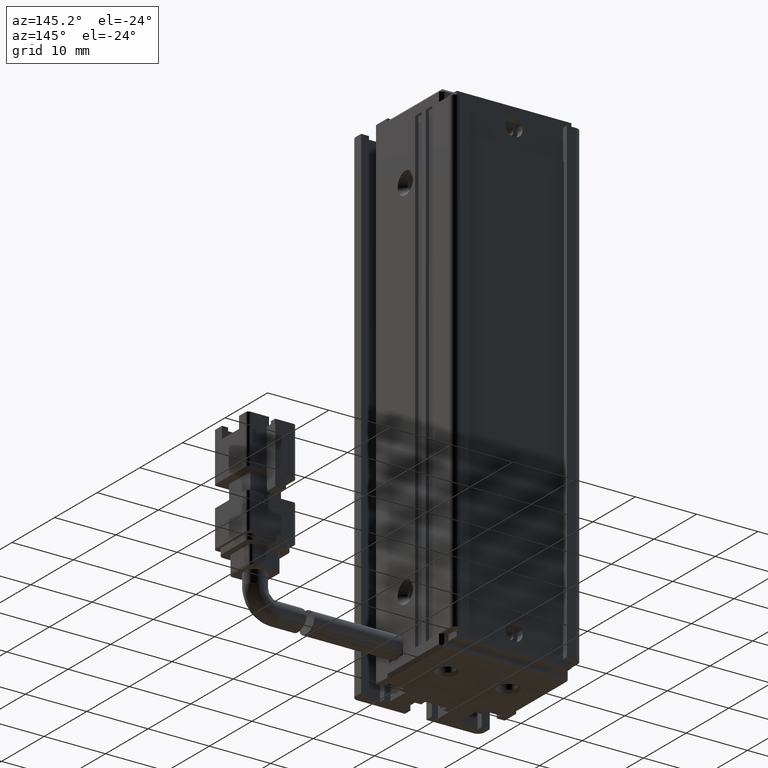
[diagram: clean part render]
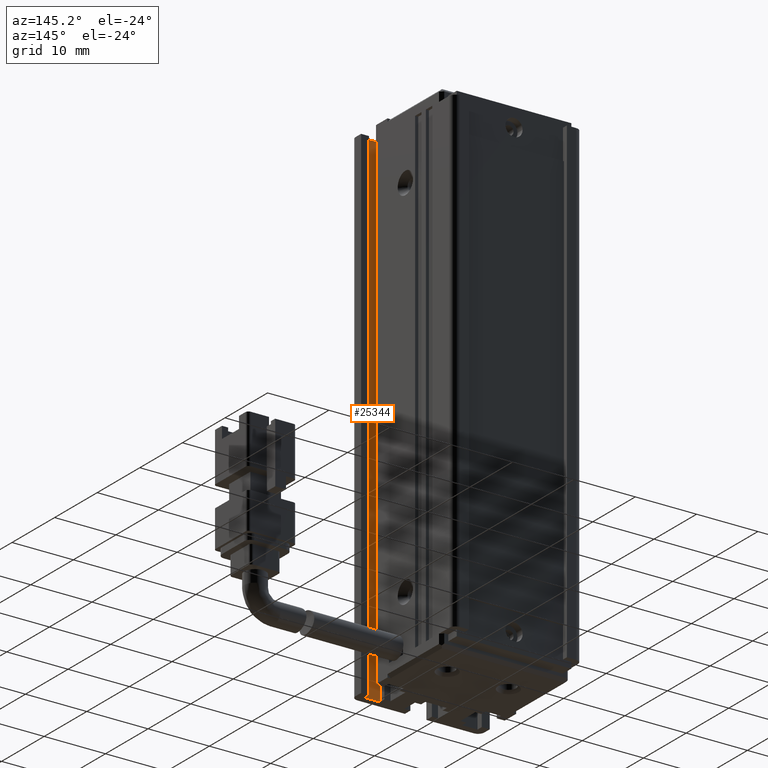
[diagram: same view with one face highlighted and labeled with its STEP entity id]
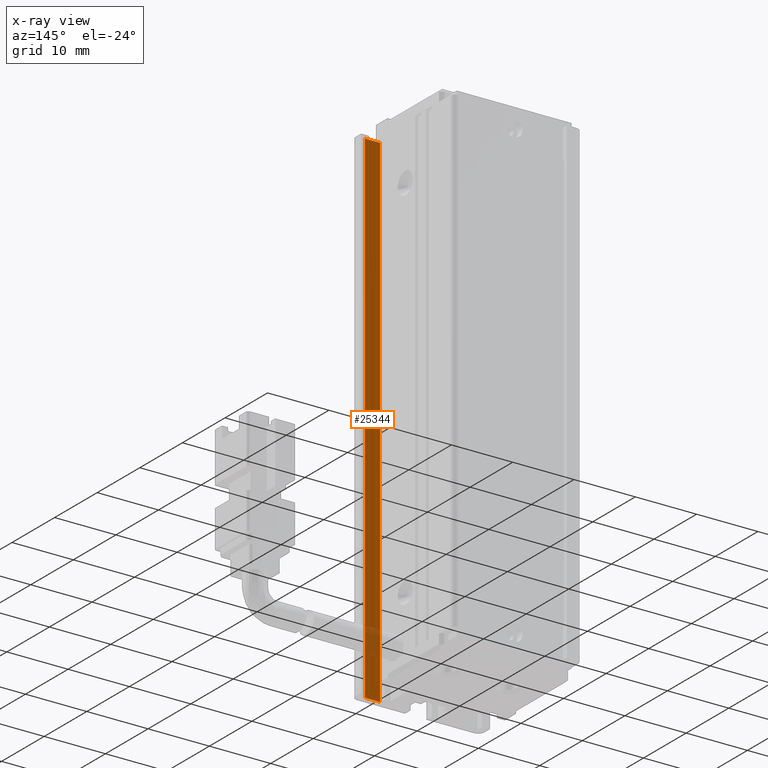
[diagram: x-ray of the same camera — body ghosted, the highlighted face saturated]
A machine part, auxiliary view. The second image highlights one B-rep face of the part: STEP entity #25344.
The next image is the same camera in x-ray: the body ghosted, the highlighted face saturated — about 5% of this face is hidden behind the body in this view.
In plain terms, the highlighted planar face has unit normal (0, 1, -0).
Its self-contained STEP definition (entity closure, byte-faithful):
#295 = EDGE_CURVE ( 'NONE', #3623, #18697, #4215, .T. ) ;
#3623 = VERTEX_POINT ( 'NONE', #26610 ) ;
#4215 = LINE ( 'NONE', #5318, #21884 ) ;
#4801 = CARTESIAN_POINT ( 'NONE',  ( 50.12537974683542100, 12.29073232304837200, -74.00000000000000000 ) ) ;
#5318 = CARTESIAN_POINT ( 'NONE',  ( 40.92537974683542500, 12.29073232304837200, -74.00000000000001400 ) ) ;
#5744 = VERTEX_POINT ( 'NONE', #23139 ) ;
#5850 = EDGE_CURVE ( 'NONE', #10724, #18697, #23126, .T. ) ;
#6682 = DIRECTION ( 'NONE',  ( -1.000000000000000000, -0.0000000000000000000, 0.0000000000000000000 ) ) ;
#6742 = LINE ( 'NONE', #25421, #25136 ) ;
#8658 = DIRECTION ( 'NONE',  ( -1.000000000000000000, 7.380418287155808400E-032, 0.0000000000000000000 ) ) ;
#9201 = EDGE_LOOP ( 'NONE', ( #22531, #10806, #21933, #19512 ) ) ;
#10348 = CARTESIAN_POINT ( 'NONE',  ( 47.62537974683541400, 12.29073232304837200, -74.00000000000001400 ) ) ;
#10724 = VERTEX_POINT ( 'NONE', #18523 ) ;
#10806 = ORIENTED_EDGE ( 'NONE', *, *, #13366, .T. ) ;
#11216 = PLANE ( 'NONE',  #22490 ) ;
#13366 = EDGE_CURVE ( 'NONE', #3623, #5744, #24870, .T. ) ;
#15811 = DIRECTION ( 'NONE',  ( 7.380418287155808400E-032, 1.000000000000000000, -0.0000000000000000000 ) ) ;
#18523 = CARTESIAN_POINT ( 'NONE',  ( 47.62537974683541400, 12.29073232304837200, -156.0000000000000000 ) ) ;
#18697 = VERTEX_POINT ( 'NONE', #10348 ) ;
#18749 = VECTOR ( 'NONE', #23245, 1000.000000000000000 ) ;
#18780 = CARTESIAN_POINT ( 'NONE',  ( 47.62537974683541400, 12.29073232304837200, -74.00000000000000000 ) ) ;
#18941 = EDGE_CURVE ( 'NONE', #5744, #10724, #6742, .T. ) ;
#19512 = ORIENTED_EDGE ( 'NONE', *, *, #5850, .T. ) ;
#21650 = DIRECTION ( 'NONE',  ( -1.000000000000000000, -0.0000000000000000000, 0.0000000000000000000 ) ) ;
#21884 = VECTOR ( 'NONE', #21650, 1000.000000000000000 ) ;
#21933 = ORIENTED_EDGE ( 'NONE', *, *, #18941, .T. ) ;
#22490 = AXIS2_PLACEMENT_3D ( 'NONE', #22507, #15811, #8658 ) ;
#22507 = CARTESIAN_POINT ( 'NONE',  ( 40.92537974683542500, 12.29073232304837200, -74.00000000000000000 ) ) ;
#22531 = ORIENTED_EDGE ( 'NONE', *, *, #295, .F. ) ;
#23126 = LINE ( 'NONE', #18780, #28894 ) ;
#23139 = CARTESIAN_POINT ( 'NONE',  ( 50.12537974683542800, 12.29073232304837200, -156.0000000000000000 ) ) ;
#23245 = DIRECTION ( 'NONE',  ( -0.0000000000000000000, -0.0000000000000000000, -1.000000000000000000 ) ) ;
#23539 = DIRECTION ( 'NONE',  ( 0.0000000000000000000, 0.0000000000000000000, 1.000000000000000000 ) ) ;
#24870 = LINE ( 'NONE', #4801, #18749 ) ;
#25136 = VECTOR ( 'NONE', #6682, 1000.000000000000000 ) ;
#25344 = ADVANCED_FACE ( 'NONE', ( #29140 ), #11216, .T. ) ;
#25421 = CARTESIAN_POINT ( 'NONE',  ( 40.92537974683542500, 12.29073232304837200, -156.0000000000000000 ) ) ;
#26610 = CARTESIAN_POINT ( 'NONE',  ( 50.12537974683542800, 12.29073232304837200, -74.00000000000001400 ) ) ;
#28894 = VECTOR ( 'NONE', #23539, 1000.000000000000000 ) ;
#29140 = FACE_OUTER_BOUND ( 'NONE', #9201, .T. ) ;